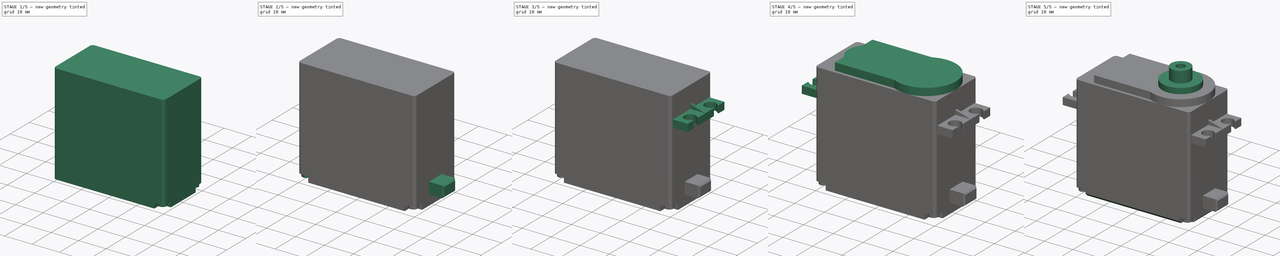
[diagram: build sequence overview — one tinted view per stage of 5, left to right]
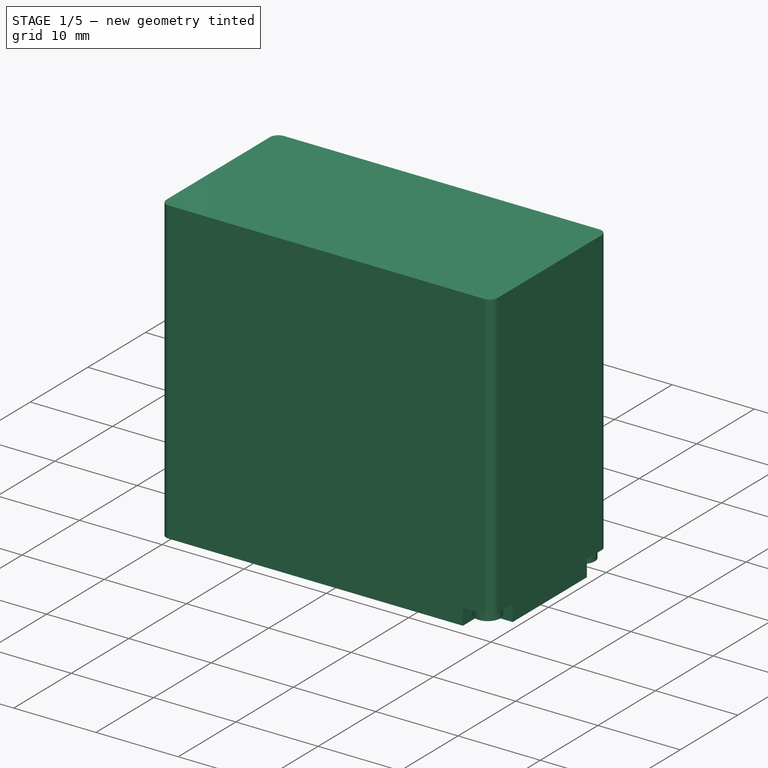
[diagram: stage 1 of 5 — iso view after this stage's code; geometry added in this stage tinted green]
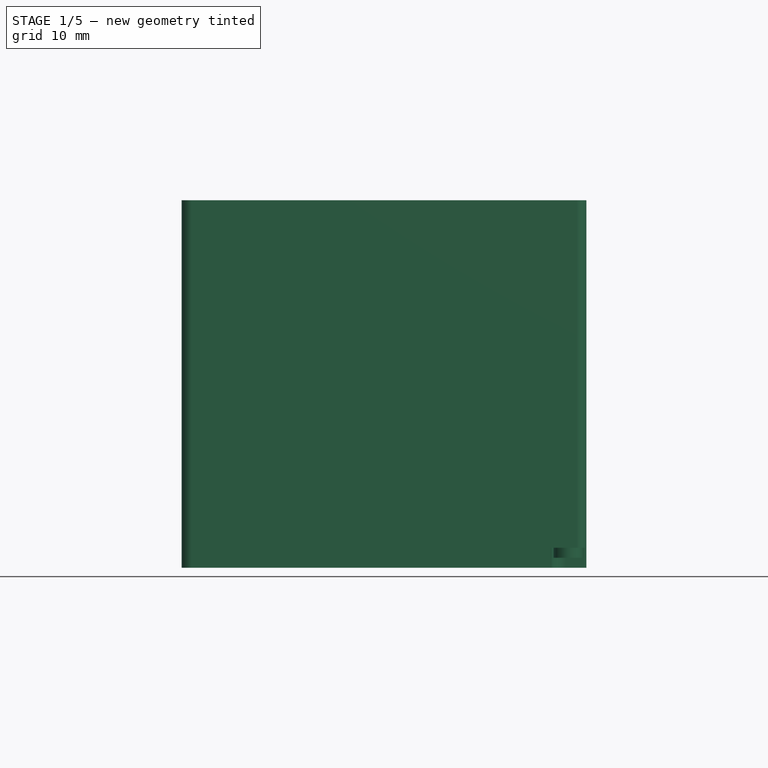
[diagram: stage 1 of 5 — front view after this stage's code; geometry added in this stage tinted green]
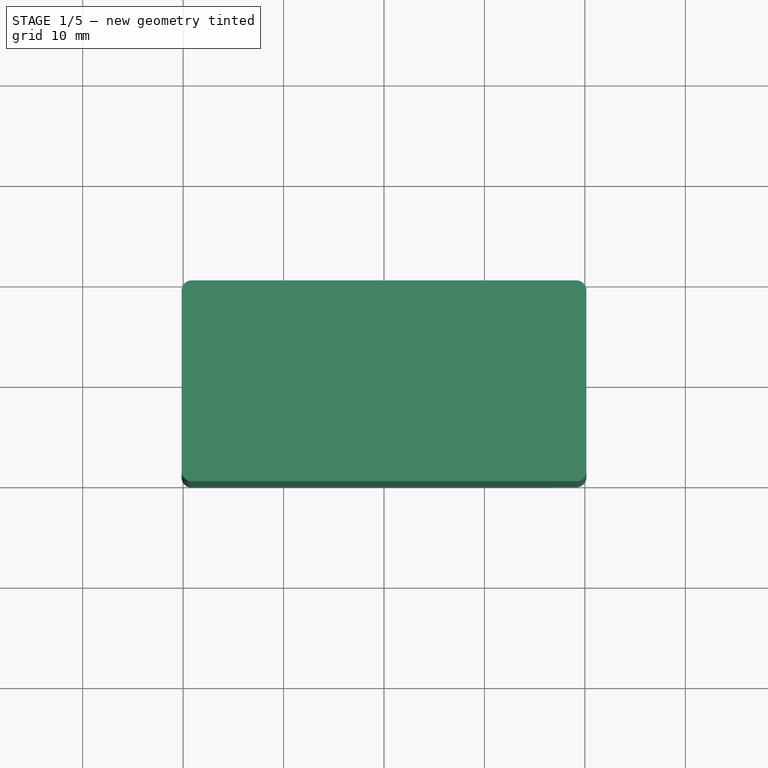
[diagram: stage 1 of 5 — top view after this stage's code; geometry added in this stage tinted green]
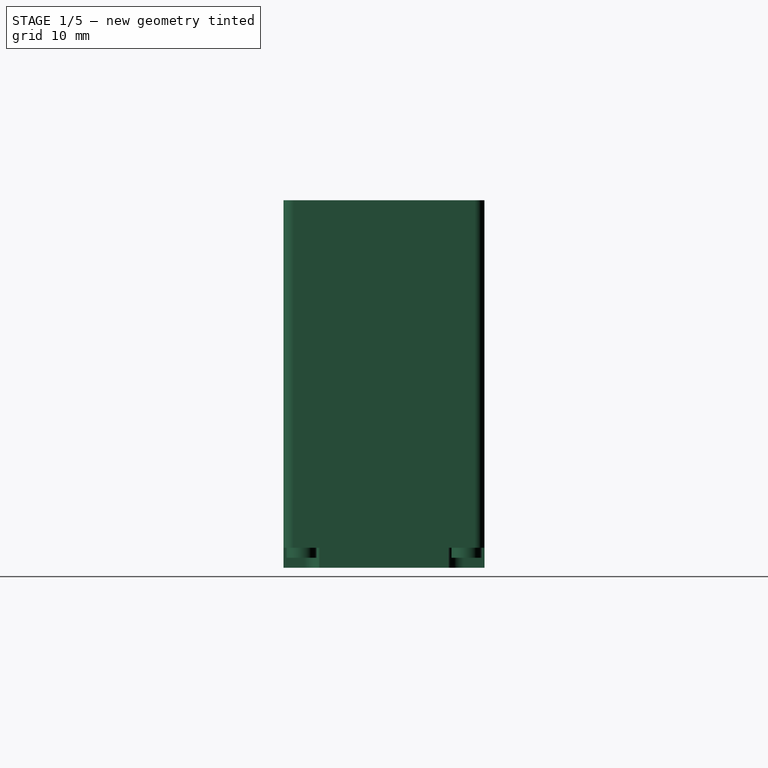
[diagram: stage 1 of 5 — right view after this stage's code; geometry added in this stage tinted green]
FCSTD DOCUMENT  (FreeCAD 1.0R39109 (Git))
Label: servo_mg99
License: All rights reserved
LicenseURL: http://en.wikipedia.org/wiki/All_rights_reserved
objects: Sketcher::SketchObject×11, PartDesign::Pad×7, PartDesign::Mirrored×5, PartDesign::Pocket×3, PartDesign::Fillet×2, PartDesign::Chamfer×2, PartDesign::Body×1
note: 75 computed .brp shape members not serialized (recipe doc carries the construction recipe); baked Part::Feature solids carry a one-line shape summary decoded from their .brp

FEATURE [Sketcher::SketchObject] Sketch
  ArcFitTolerance = 1e-06
  AttachmentSupport = -> [XY_Plane]
  FullyConstrained = true
  MakeInternals = false
  MapMode = 5
  sketch-geometry (5):
    g0: LineSegment StartX=20.15 StartY=10 StartZ=0 EndX=-20.15 EndY=10 EndZ=0
    g1: LineSegment StartX=-20.15 StartY=10 StartZ=0 EndX=-20.15 EndY=-10 EndZ=0
    g2: LineSegment StartX=-20.15 StartY=-10 StartZ=0 EndX=20.15 EndY=-10 EndZ=0
    g3: LineSegment StartX=20.15 StartY=-10 StartZ=0 EndX=20.15 EndY=10 EndZ=0
    g4: GeomPoint [constr] X=0 Y=0 Z=0
  constraints (12):
    c: Coincident(g0,g1)
    c: Coincident(g1,g2)
    c: Coincident(g2,g3)
    c: Coincident(g3,g0)
    c: Horizontal(g0)
    c: Horizontal(g2)
    c: Vertical(g1)
    c: Vertical(g3)
    c: Symmetric(g2,g0,g4)
    c: Coincident(g4,g-1)
    c: DistanceX(g2,g2) = 40.3
    c: DistanceY(g3,g3) = 20
FEATURE [PartDesign::Pad] Pad  label="BasePad"
  Direction = (0,0,1)
  Length = 36.6
  Length2 = 10
  Profile = -> Sketch
  ReferenceAxis = -> Sketch [N_Axis]
  Refine = true
  Suppressed = false
  Type = 0
FEATURE [PartDesign::Fillet] Fillet  label="BAseFillet"
  Base = -> Pad [Edge8,Edge1,Edge5,Edge2]
  BaseFeature = -> Pad
  Radius = 1
  Refine = true
  SupportTransform = false
  Suppressed = false
  UseAllEdges = false
FEATURE [Sketcher::SketchObject] Sketch001
  ArcFitTolerance = 1e-06
  AttachmentSupport = -> [Fillet]
  ExternalGeometry = -> [Fillet]
  FullyConstrained = false
  MakeInternals = false
  MapMode = 5
  Placement = pos=(0,0,0) rot=(1,0,0;3.14159rad)
  sketch-geometry (20):
    g0: Circle [constr] CenterX=19.15 CenterY=9 CenterZ=0 NormalX=0 NormalY=0 NormalZ=1 AngleXU=0 Radius=1.5
    g1: LineSegment [constr] StartX=19.8571 StartY=9.70711 StartZ=0 EndX=18.0893 EndY=7.93934 EndZ=0
    g2: LineSegment [constr] StartX=20.15 StartY=9 StartZ=0 EndX=19.15 EndY=9 EndZ=0
    g3: Circle [constr] CenterX=18.0893 CenterY=7.93934 CenterZ=0 NormalX=0 NormalY=0 NormalZ=1 AngleXU=0 Radius=1.5
    g4: ArcOfCircle CenterX=18.0893 CenterY=7.93934 CenterZ=0 NormalX=0 NormalY=0 NormalZ=1 AngleXU=0 Radius=1.5 StartAngle=3.14159 EndAngle=4.71239
    g5: LineSegment StartX=18.0893 StartY=6.43934 StartZ=0 EndX=20.15 EndY=6.43934 EndZ=0
    g6: LineSegment StartX=16.5893 StartY=7.93934 StartZ=0 EndX=16.5893 EndY=10 EndZ=0
    g7: LineSegment StartX=16.5893 StartY=10 StartZ=0 EndX=19.15 EndY=10 EndZ=0
    g8: LineSegment StartX=20.15 StartY=6.43934 StartZ=0 EndX=20.15 EndY=9 EndZ=0
    g9: ArcOfCircle CenterX=19.15 CenterY=9 CenterZ=0 NormalX=0 NormalY=0 NormalZ=1 AngleXU=0 Radius=1 StartAngle=0 EndAngle=1.5708
    g10: Circle [constr] CenterX=19.15 CenterY=-9 CenterZ=0 NormalX=0 NormalY=0 NormalZ=1 AngleXU=0 Radius=1.5
    g11: LineSegment [constr] StartX=19.8571 StartY=-9.70711 StartZ=0 EndX=18.0893 EndY=-7.93934 EndZ=0
    g12: LineSegment [constr] StartX=20.15 StartY=-9 StartZ=0 EndX=19.15 EndY=-9 EndZ=0
    g13: Circle [constr] CenterX=18.0893 CenterY=-7.93934 CenterZ=0 NormalX=0 NormalY=0 NormalZ=1 AngleXU=0 Radius=1.5
    g14: ArcOfCircle CenterX=18.0893 CenterY=-7.93934 CenterZ=0 NormalX=0 NormalY=0 NormalZ=1 AngleXU=0 Radius=1.5 StartAngle=1.5708 EndAngle=3.14159
    g15: LineSegment StartX=18.0893 StartY=-6.43934 StartZ=0 EndX=20.15 EndY=-6.43934 EndZ=0
    g16: LineSegment StartX=16.5893 StartY=-7.93934 StartZ=0 EndX=16.5893 EndY=-10 EndZ=0
    g17: LineSegment StartX=16.5893 StartY=-10 StartZ=0 EndX=19.15 EndY=-10 EndZ=0
    g18: LineSegment StartX=20.15 StartY=-6.43934 StartZ=0 EndX=20.15 EndY=-9 EndZ=0
    g19: ArcOfCircle CenterX=19.15 CenterY=-9 CenterZ=0 NormalX=0 NormalY=0 NormalZ=1 AngleXU=0 Radius=1 StartAngle=4.71239 EndAngle=6.28319
  constraints (47):
    c: Coincident(g0,g-5)
    c: Radius(g0) = 1.5
    c: PointOnObject(g1,g-5)
    c: PointOnObject(g1,g0)
    c: PointOnObject(g0,g1)
    c: Coincident(g2,g-5)
    c: Coincident(g2,g0)
    c: Angle(g1,g2) = 2.35619
    c: Equal(g3,g0)
    c: Coincident(g3,g1)
    c: Coincident(g4,g1)
    c: PointOnObject(g4,g3)
    c: PointOnObject(g5,g-4)
    c: Horizontal(g5)
    c: Tangent(g5,g4) = -1.5708
    c: Tangent(g6,g3)
    c: Coincident(g4,g6)
    c: Vertical(g6)
    c: PointOnObject(g6,g-3)
    c: Horizontal(g7)
    c: Coincident(g7,g6)
    c: Coincident(g2,g8)
    c: Coincident(g9,g0)
    c: Coincident(g9,g7)
    c: Coincident(g9,g2)
    c: Coincident(g8,g5)
    c: Radius(g10) = 1.5
    c: PointOnObject(g11,g10)
    c: PointOnObject(g10,g11)
    c: Coincident(g12,g10)
    c: Angle(g11,g12) = -2.35619
    c: Equal(g13,g10)
    c: Coincident(g13,g11)
    c: Coincident(g14,g11)
    c: PointOnObject(g14,g13)
    c: Horizontal(g15)
    c: Tangent(g15,g14) = 1.5708
    c: Tangent(g16,g13)
    c: Coincident(g14,g16)
    c: Vertical(g16)
    c: Horizontal(g17)
    c: Coincident(g17,g16)
    c: Coincident(g12,g18)
    c: Coincident(g19,g10)
    c: Coincident(g19,g17)
    c: Coincident(g19,g12)
    c: Coincident(g18,g15)
FEATURE [PartDesign::Pocket] Pocket  label="ScrewBasePocket"
  BaseFeature = -> Fillet
  Direction = (0,0,1)
  Length = 2
  Length2 = 5
  Profile = -> Sketch001
  ReferenceAxis = -> Sketch001 [N_Axis]
  Refine = true
  Suppressed = false
  Type = 0
FEATURE [Sketcher::SketchObject] Sketch002
  ArcFitTolerance = 1e-06
  AttachmentSupport = -> [Pocket]
  ExternalGeometry = -> [Pocket]
  FullyConstrained = false
  MakeInternals = false
  MapMode = 5
  Placement = pos=(0,0,2) rot=(1,0,0;3.14159rad)
  sketch-geometry (34):
    g0: LineSegment [constr] StartX=16.5893 StartY=-10 StartZ=0 EndX=20.15 EndY=-10 EndZ=0
    g1: LineSegment [constr] StartX=20.15 StartY=-10 StartZ=0 EndX=20.15 EndY=-6.43934 EndZ=0
    g2: GeomPoint X=20.15 Y=-8.21967 Z=0
    g3: GeomPoint X=18.3697 Y=-10 Z=0
    g4: Circle CenterX=18.3697 CenterY=-8.21967 CenterZ=0 NormalX=0 NormalY=0 NormalZ=1 AngleXU=0 Radius=1.5
    g5: LineSegment StartX=18.1697 StartY=-8.01967 StartZ=0 EndX=18.1697 EndY=-7.26967 EndZ=0
    g6: LineSegment StartX=18.1697 StartY=-7.26967 StartZ=0 EndX=18.5697 EndY=-7.26967 EndZ=0
    g7: LineSegment StartX=18.5697 StartY=-7.26967 StartZ=0 EndX=18.5697 EndY=-8.01967 EndZ=0
    g8: LineSegment StartX=18.5697 StartY=-8.01967 StartZ=0 EndX=19.3197 EndY=-8.01967 EndZ=0
    g9: LineSegment StartX=19.3197 StartY=-8.01967 StartZ=0 EndX=19.3197 EndY=-8.41967 EndZ=0
    g10: LineSegment StartX=19.3197 StartY=-8.41967 StartZ=0 EndX=18.5697 EndY=-8.41967 EndZ=0
    g11: LineSegment StartX=18.5697 StartY=-8.41967 StartZ=0 EndX=18.5697 EndY=-9.16967 EndZ=0
    g12: LineSegment StartX=18.5697 StartY=-9.16967 StartZ=0 EndX=18.1697 EndY=-9.16967 EndZ=0
    g13: LineSegment StartX=18.1697 StartY=-9.16967 StartZ=0 EndX=18.1697 EndY=-8.41967 EndZ=0
    g14: LineSegment StartX=18.1697 StartY=-8.41967 StartZ=0 EndX=17.4197 EndY=-8.41967 EndZ=0
    g15: LineSegment StartX=17.4197 StartY=-8.41967 StartZ=0 EndX=17.4197 EndY=-8.01967 EndZ=0
    g16: LineSegment StartX=17.4197 StartY=-8.01967 StartZ=0 EndX=18.1697 EndY=-8.01967 EndZ=0
    g17: LineSegment [constr] StartX=16.5893 StartY=10 StartZ=0 EndX=20.15 EndY=10 EndZ=0
    g18: LineSegment [constr] StartX=20.15 StartY=10 StartZ=0 EndX=20.15 EndY=6.43934 EndZ=0
    g19: GeomPoint X=20.15 Y=8.21967 Z=0
    g20: GeomPoint X=18.3697 Y=10 Z=0
    g21: Circle CenterX=18.3697 CenterY=8.21967 CenterZ=0 NormalX=0 NormalY=0 NormalZ=1 AngleXU=0 Radius=1.5
    g22: LineSegment StartX=18.1697 StartY=8.01967 StartZ=0 EndX=18.1697 EndY=7.26967 EndZ=0
    g23: LineSegment StartX=18.1697 StartY=7.26967 StartZ=0 EndX=18.5697 EndY=7.26967 EndZ=0
    g24: LineSegment StartX=18.5697 StartY=7.26967 StartZ=0 EndX=18.5697 EndY=8.01967 EndZ=0
    g25: LineSegment StartX=18.5697 StartY=8.01967 StartZ=0 EndX=19.3197 EndY=8.01967 EndZ=0
    g26: LineSegment StartX=19.3197 StartY=8.01967 StartZ=0 EndX=19.3197 EndY=8.41967 EndZ=0
    g27: LineSegment StartX=19.3197 StartY=8.41967 StartZ=0 EndX=18.5697 EndY=8.41967 EndZ=0
    g28: LineSegment StartX=18.5697 StartY=8.41967 StartZ=0 EndX=18.5697 EndY=9.16967 EndZ=0
    g29: LineSegment StartX=18.5697 StartY=9.16967 StartZ=0 EndX=18.1697 EndY=9.16967 EndZ=0
    g30: LineSegment StartX=18.1697 StartY=9.16967 StartZ=0 EndX=18.1697 EndY=8.41967 EndZ=0
    g31: LineSegment StartX=18.1697 StartY=8.41967 StartZ=0 EndX=17.4197 EndY=8.41967 EndZ=0
    g32: LineSegment StartX=17.4197 StartY=8.41967 StartZ=0 EndX=17.4197 EndY=8.01967 EndZ=0
    g33: LineSegment StartX=17.4197 StartY=8.01967 StartZ=0 EndX=18.1697 EndY=8.01967 EndZ=0
  constraints (80):
    c: Coincident(g0,g-4)
    c: Horizontal(g0)
    c: Coincident(g1,g0)
    c: Coincident(g1,g-3)
    c: Vertical(g1)
    c: Symmetric(g1,g1,g2)
    c: Symmetric(g0,g0,g3)
    c: Radius(g4) = 1.5
    c: Vertical(g3,g4)
    c: Horizontal(g2,g4)
    c: Coincident(g5,g6)
    c: Coincident(g6,g7)
    c: Coincident(g7,g8)
    c: Horizontal(g8)
    c: Coincident(g8,g9)
    c: Coincident(g9,g10)
    c: Coincident(g10,g11)
    c: Coincident(g11,g12)
    c: Coincident(g12,g13)
    c: Coincident(g13,g14)
    c: Coincident(g14,g15)
    c: Vertical(g15)
    c: Coincident(g15,g16)
    c: Coincident(g16,g5)
    c: Horizontal(g16)
    c: Horizontal(g6)
    c: Horizontal(g10)
    c: Horizontal(g12)
    c: Horizontal(g14)
    c: Vertical(g11)
    c: Vertical(g9)
    c: Vertical(g7)
    c: Vertical(g5)
    c: Vertical(g5,g13)
    c: Vertical(g7,g10)
    c: Vertical(g13)
    c: Horizontal(g13,g10)
    c: Horizontal(g7,g5)
    c: Equal(g16,g5)
    c: Equal(g7,g8)
    c: Equal(g10,g11)
    c: DistanceY(g9,g9) = 0.4
    c: DistanceY(g7,g7) = 0.75
    c: Symmetric(g13,g7,g4)
    c: Equal(g6,g9)
    c: Horizontal(g17)
    c: Coincident(g18,g17)
    c: Vertical(g18)
    c: Symmetric(g18,g18,g19)
    c: Symmetric(g17,g17,g20)
    c: Radius(g21) = 1.5
    c: Coincident(g22,g23)
    c: Coincident(g23,g24)
    c: Coincident(g24,g25)
    c: Horizontal(g25)
    c: Coincident(g25,g26)
    c: Coincident(g26,g27)
    c: Coincident(g27,g28)
    c: Coincident(g28,g29)
    c: Coincident(g29,g30)
    c: Coincident(g30,g31)
    c: Coincident(g31,g32)
    c: Vertical(g32)
    c: Coincident(g32,g33)
    c: Coincident(g33,g22)
    c: Horizontal(g33)
    c: Horizontal(g23)
    c: Horizontal(g27)
    c: Horizontal(g29)
    c: Horizontal(g31)
    c: Vertical(g28)
    c: Vertical(g26)
    c: Vertical(g24)
    c: Vertical(g22)
    c: Vertical(g30)
    c: Equal(g33,g22)
    c: Equal(g24,g25)
    c: Equal(g27,g28)
    c: Symmetric(g30,g24,g21)
    c: Equal(g23,g26)
FEATURE [PartDesign::Pad] Pad001  label="ScrewBasePad"
  BaseFeature = -> Pocket
  Direction = (0,0,-1)
  Length = 1
  Length2 = 10
  Profile = -> Sketch002
  ReferenceAxis = -> Sketch002 [N_Axis]
  Refine = true
  Suppressed = false
  Type = 0
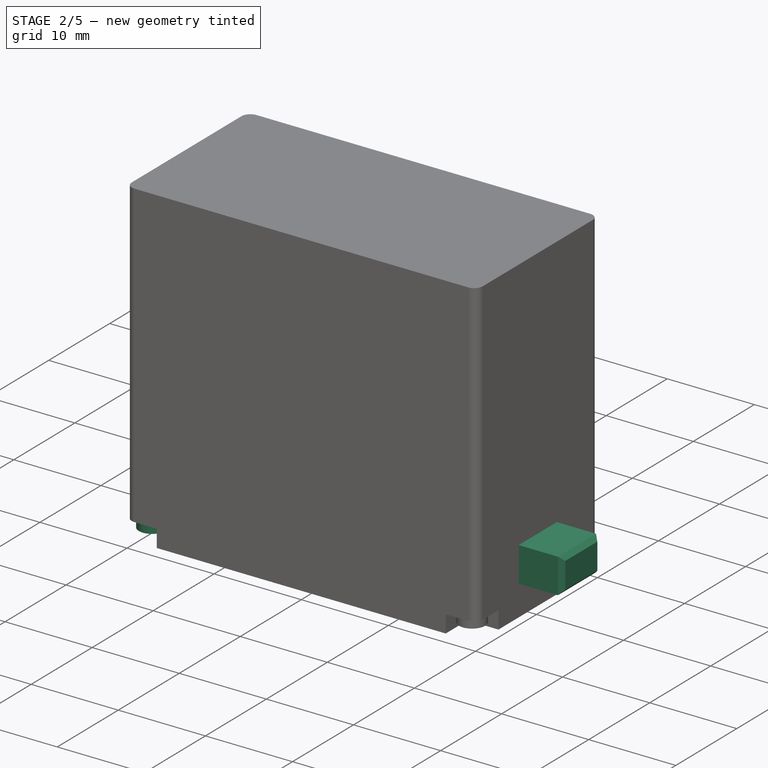
[diagram: stage 2 of 5 — iso view after this stage's code; geometry added in this stage tinted green]
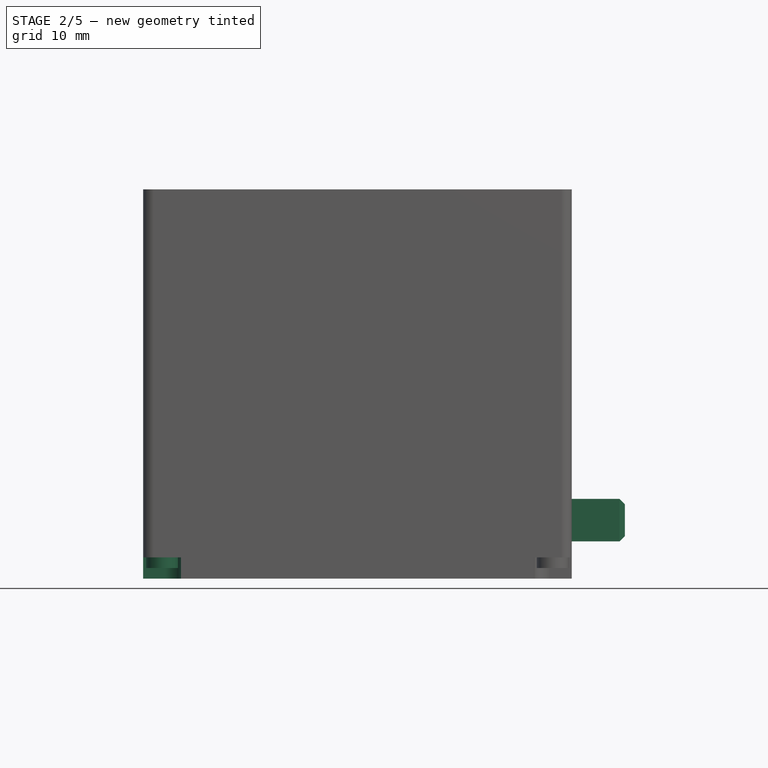
[diagram: stage 2 of 5 — front view after this stage's code; geometry added in this stage tinted green]
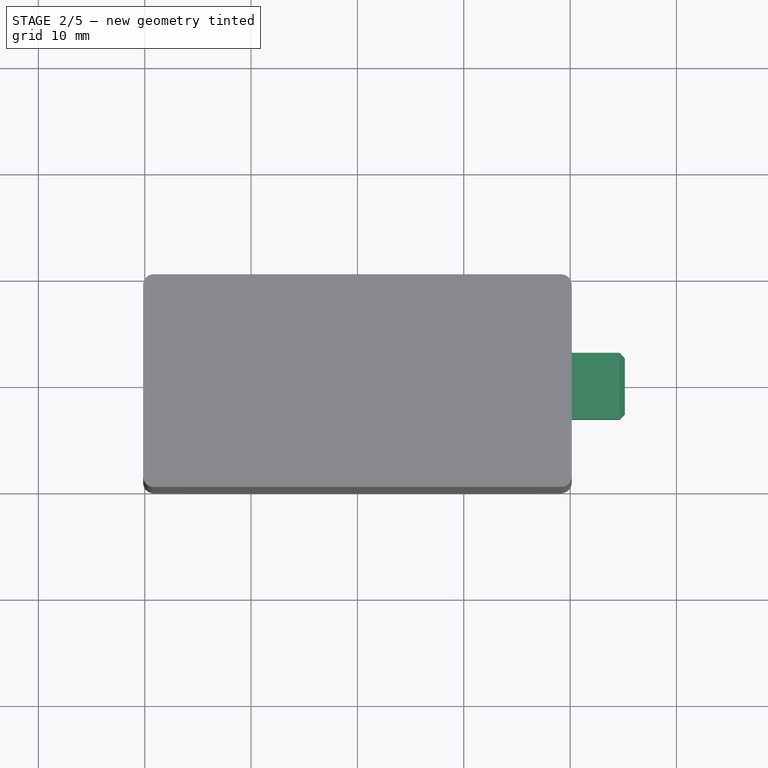
[diagram: stage 2 of 5 — top view after this stage's code; geometry added in this stage tinted green]
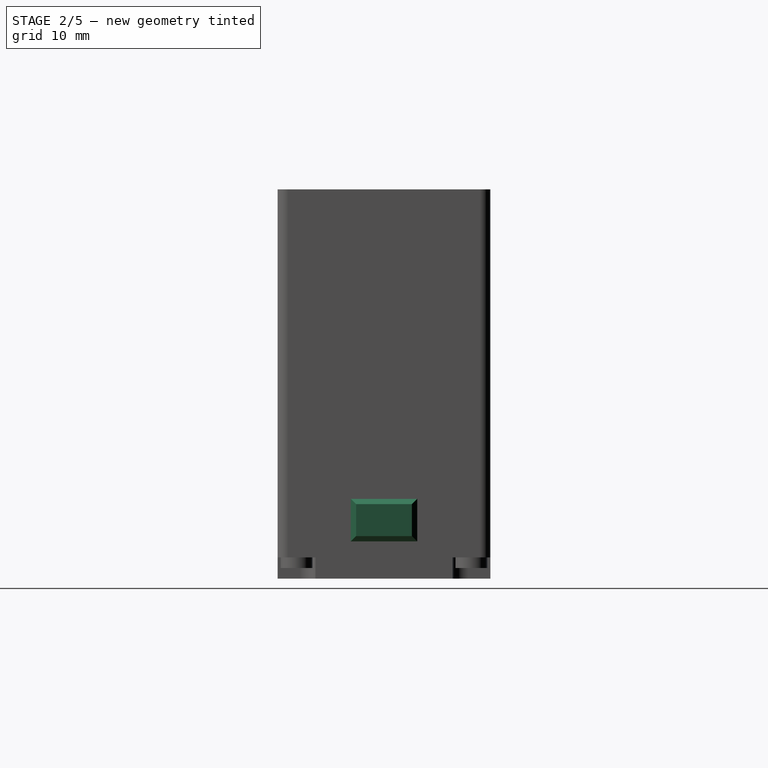
[diagram: stage 2 of 5 — right view after this stage's code; geometry added in this stage tinted green]
FEATURE [PartDesign::Mirrored] Mirrored  label="ScrewBasePocketMirror"
  BaseFeature = -> Pad001
  MirrorPlane = -> YZ_Plane
  Originals = -> [Pocket]
  Refine = true
  Suppressed = false
  TransformMode = 0
FEATURE [PartDesign::Mirrored] Mirrored001  label="ScrewBasePadMirror"
  BaseFeature = -> Mirrored
  MirrorPlane = -> Sketch002 [V_Axis]
  Originals = -> [Pad001]
  Refine = true
  Suppressed = false
  TransformMode = 0
FEATURE [Sketcher::SketchObject] Sketch003
  ArcFitTolerance = 1e-06
  AttachmentSupport = -> [Mirrored001]
  FullyConstrained = true
  MakeInternals = false
  MapMode = 5
  Placement = pos=(20.15,0,0) rot=(0.57735,0.57735,0.57735;2.0944rad)
  sketch-geometry (5):
    g0: LineSegment StartX=-3.125 StartY=7.5 StartZ=0 EndX=-3.125 EndY=3.5 EndZ=0
    g1: LineSegment StartX=-3.125 StartY=3.5 StartZ=0 EndX=3.125 EndY=3.5 EndZ=0
    g2: LineSegment StartX=3.125 StartY=3.5 StartZ=0 EndX=3.125 EndY=7.5 EndZ=0
    g3: LineSegment StartX=3.125 StartY=7.5 StartZ=0 EndX=-3.125 EndY=7.5 EndZ=0
    g4: GeomPoint [constr] X=0 Y=5.5 Z=0
  constraints (13):
    c: Coincident(g0,g1)
    c: Coincident(g1,g2)
    c: Coincident(g2,g3)
    c: Coincident(g3,g0)
    c: Vertical(g0)
    c: Vertical(g2)
    c: Horizontal(g1)
    c: Horizontal(g3)
    c: Symmetric(g2,g0,g4)
    c: PointOnObject(g4,g-2)
    c: DistanceX(g1,g1) = 6.25
    c: DistanceY(g2,g2) = 4
    c: DistanceY(g1) = 3.5
FEATURE [PartDesign::Pad] Pad002  label="ConnectorPad"
  BaseFeature = -> Mirrored001
  Direction = (1,0,0)
  Length = 5
  Length2 = 10
  Profile = -> Sketch003
  ReferenceAxis = -> Sketch003 [N_Axis]
  Refine = true
  Suppressed = false
  Type = 0
FEATURE [PartDesign::Chamfer] Chamfer  label="ConnectorChampfer"
  Angle = 45
  Base = -> Pad002 [Edge86,Edge88,Edge90,Edge91]
  BaseFeature = -> Pad002
  ChamferType = 0
  FlipDirection = false
  Refine = true
  Size = 0.5
  Size2 = 1
  SupportTransform = false
  Suppressed = false
  UseAllEdges = false
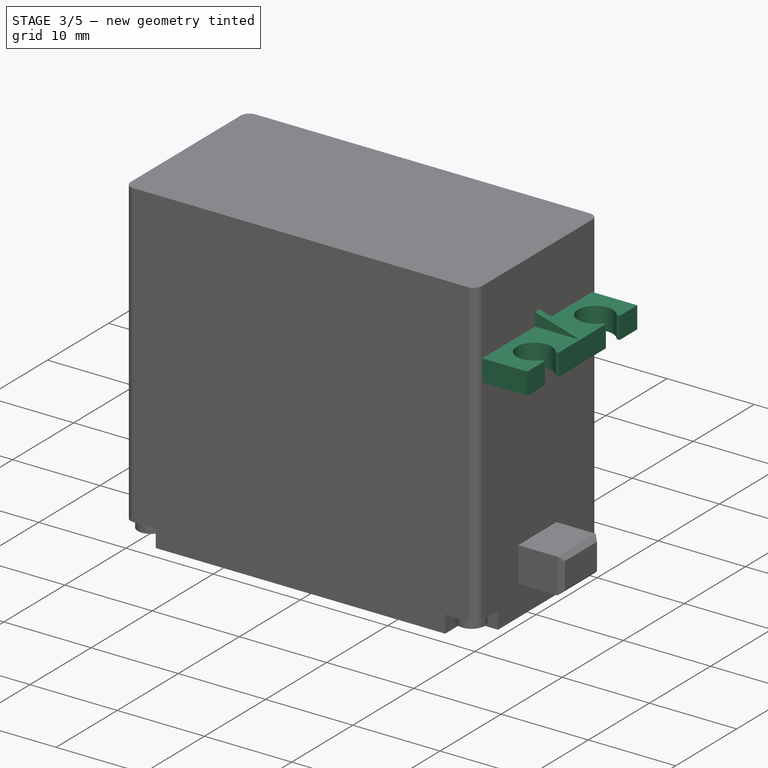
[diagram: stage 3 of 5 — iso view after this stage's code; geometry added in this stage tinted green]
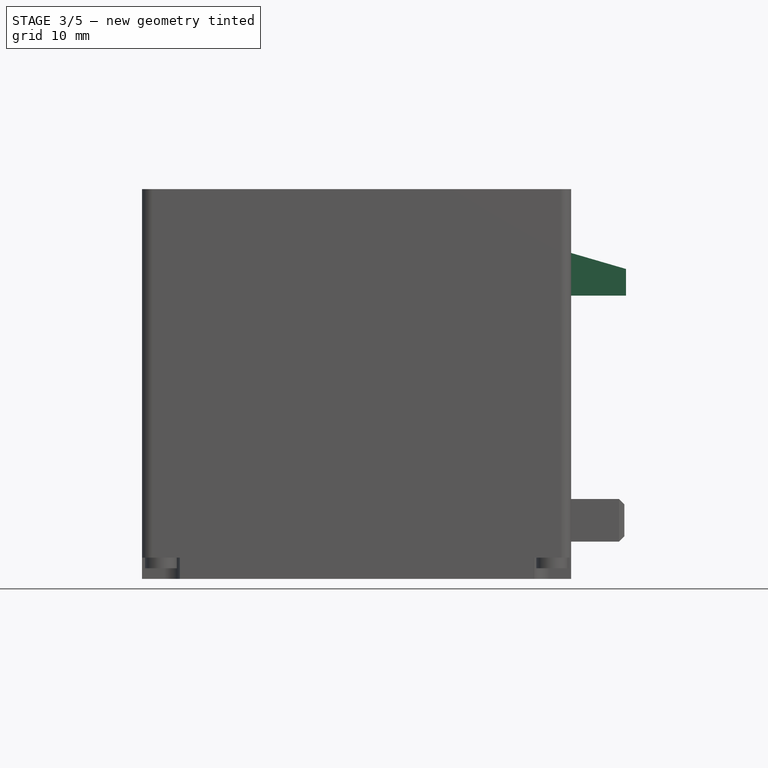
[diagram: stage 3 of 5 — front view after this stage's code; geometry added in this stage tinted green]
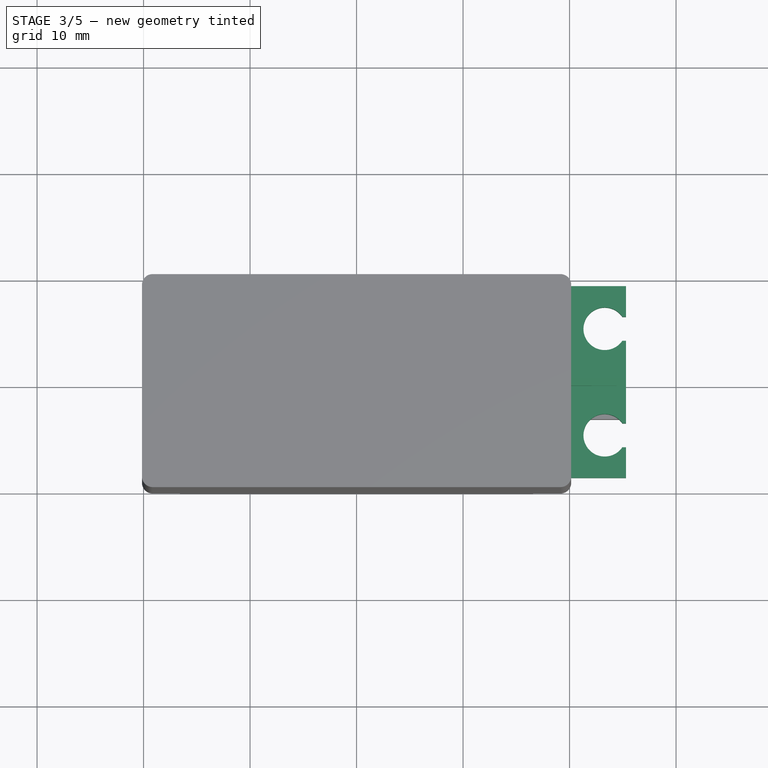
[diagram: stage 3 of 5 — top view after this stage's code; geometry added in this stage tinted green]
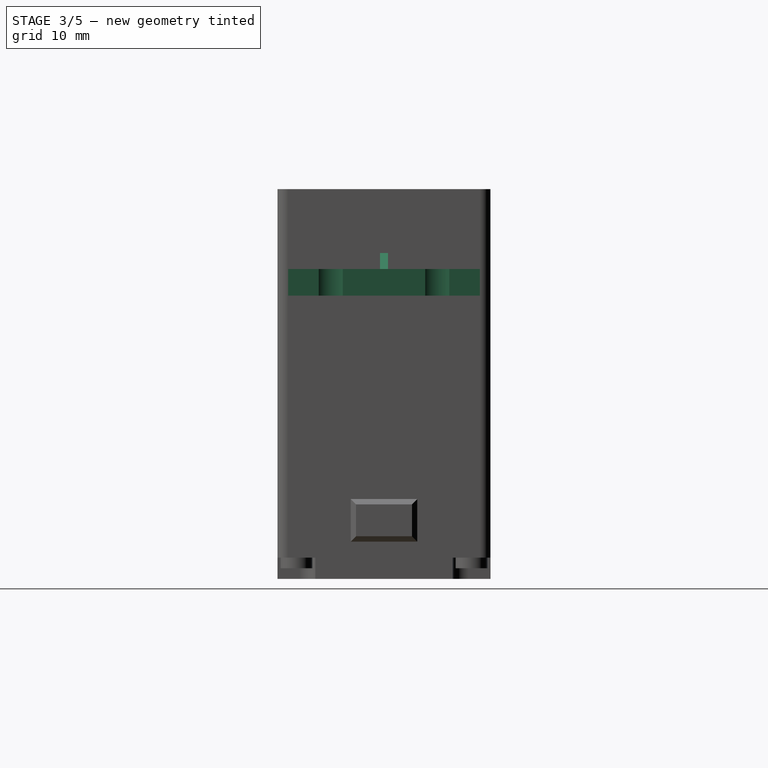
[diagram: stage 3 of 5 — right view after this stage's code; geometry added in this stage tinted green]
FEATURE [Sketcher::SketchObject] Sketch004
  ArcFitTolerance = 1e-06
  AttachmentSupport = -> [Chamfer]
  ExternalGeometry = -> [Chamfer]
  FullyConstrained = true
  MakeInternals = false
  MapMode = 5
  Placement = pos=(20.15,0,0) rot=(0.57735,0.57735,0.57735;2.0944rad)
  sketch-geometry (10):
    g0: LineSegment StartX=-9 StartY=29.1 StartZ=0 EndX=-9 EndY=26.6 EndZ=0
    g1: LineSegment StartX=-9 StartY=26.6 StartZ=0 EndX=9 EndY=26.6 EndZ=0
    g2: LineSegment StartX=9 StartY=26.6 StartZ=0 EndX=9 EndY=29.1 EndZ=0
    g3: LineSegment [constr] StartX=9 StartY=29.1 StartZ=0 EndX=-9 EndY=29.1 EndZ=0
    g4: GeomPoint [constr] X=0 Y=27.85 Z=0
    g5: LineSegment StartX=-9 StartY=29.1 StartZ=0 EndX=-0.375017 EndY=29.1 EndZ=0
    g6: LineSegment StartX=0.375 StartY=29.1 StartZ=0 EndX=9 EndY=29.1 EndZ=0
    g7: LineSegment StartX=-0.375 StartY=30.6 StartZ=0 EndX=0.375 EndY=30.6 EndZ=0
    g8: LineSegment StartX=-0.375017 StartY=29.1 StartZ=0 EndX=-0.375 EndY=30.6 EndZ=0
    g9: LineSegment StartX=0.375 StartY=30.6 StartZ=0 EndX=0.375 EndY=29.1 EndZ=0
  constraints (26):
    c: Coincident(g0,g1)
    c: Coincident(g1,g2)
    c: Coincident(g2,g3)
    c: Coincident(g3,g0)
    c: Vertical(g0)
    c: Vertical(g2)
    c: Horizontal(g1)
    c: Horizontal(g3)
    c: Symmetric(g2,g0,g4)
    c: PointOnObject(g4,g-2)
    c: PointOnObject(g1,g-4)
    c: DistanceY(g1) = 26.6
    c: DistanceY(g2,g2) = 2.5
    c: Coincident(g0,g5)
    c: PointOnObject(g6,g3)
    c: Coincident(g6,g2)
    c: Horizontal(g5,g6)
    c: Symmetric(g7,g7,g-2)
    c: DistanceX(g7,g7) = 0.75
    c: Coincident(g8,g5)
    c: Coincident(g8,g7)
    c: Coincident(g9,g7)
    c: Coincident(g9,g6)
    c: Equal(g9,g8)
    c: Vertical(g9)
    c: DistanceY(g9,g9) = 1.5
FEATURE [PartDesign::Pad] Pad003  label="SupScrewBasePad"
  BaseFeature = -> Chamfer
  Direction = (1,0,0)
  Length = 5.15
  Length2 = 10
  Profile = -> Sketch004
  ReferenceAxis = -> Sketch004 [N_Axis]
  Refine = true
  Suppressed = false
  Type = 0
FEATURE [Sketcher::SketchObject] Sketch005
  ArcFitTolerance = 1e-06
  AttachmentSupport = -> [Pad003]
  ExternalGeometry = -> [Pad003]
  FullyConstrained = true
  MakeInternals = false
  MapMode = 5
  Placement = pos=(0,-0.375352,4.31693e-06) rot=(1,0,0;1.57079rad)
  sketch-geometry (3):
    g0: LineSegment StartX=20.15 StartY=30.6 StartZ=0 EndX=25.3 EndY=29.1 EndZ=0
    g1: LineSegment StartX=25.3 StartY=29.1 StartZ=0 EndX=25.3 EndY=30.6 EndZ=0
    g2: LineSegment StartX=25.3 StartY=30.6 StartZ=0 EndX=20.15 EndY=30.6 EndZ=0
  constraints (6):
    c: Coincident(g-3,g0)
    c: Coincident(g0,g-4)
    c: Coincident(g0,g1)
    c: Coincident(g1,g-4)
    c: Coincident(g1,g2)
    c: Coincident(g2,g0)
FEATURE [PartDesign::Pocket] Pocket001  label="SupScrewBasePocket"
  BaseFeature = -> Pad003
  Direction = (0,1,-1.1501e-05)
  Length = 5
  Length2 = 5
  Profile = -> Sketch005
  ReferenceAxis = -> Sketch005 [N_Axis]
  Refine = true
  Suppressed = false
  Type = 2
FEATURE [Sketcher::SketchObject] Sketch006
  ArcFitTolerance = 1e-06
  AttachmentSupport = -> [Pocket001]
  ExternalGeometry = -> [Pocket001]
  FullyConstrained = false
  MakeInternals = false
  MapMode = 5
  Placement = pos=(0,1.19e-14,29.1) rot=(0,0,1;0rad)
  sketch-geometry (14):
    g0: Circle [constr] CenterX=23.3 CenterY=5 CenterZ=0 NormalX=0 NormalY=0 NormalZ=1 AngleXU=0 Radius=2
    g1: GeomPoint X=23.3 Y=7 Z=0
    g2: GeomPoint X=21.3 Y=5 Z=0
    g3: ArcOfCircle CenterX=23.3 CenterY=5 CenterZ=0 NormalX=0 NormalY=0 NormalZ=1 AngleXU=0 Radius=2 StartAngle=0.597406 EndAngle=5.68578
    g4: LineSegment StartX=24.9536 StartY=6.125 StartZ=0 EndX=25.3 EndY=6.125 EndZ=0
    g5: LineSegment StartX=24.9536 StartY=3.875 StartZ=0 EndX=25.3 EndY=3.875 EndZ=0
    g6: LineSegment StartX=25.3 StartY=6.125 StartZ=0 EndX=25.3 EndY=3.875 EndZ=0
    g7: Circle [constr] CenterX=23.3 CenterY=-5 CenterZ=0 NormalX=0 NormalY=0 NormalZ=1 AngleXU=0 Radius=2
    g8: GeomPoint X=23.3 Y=-7 Z=0
    g9: GeomPoint X=21.3 Y=-5 Z=0
    g10: ArcOfCircle CenterX=23.3 CenterY=-5 CenterZ=0 NormalX=0 NormalY=0 NormalZ=1 AngleXU=0 Radius=2 StartAngle=0.597406 EndAngle=5.68578
    g11: LineSegment StartX=24.9536 StartY=-6.125 StartZ=0 EndX=25.3 EndY=-6.125 EndZ=0
    g12: LineSegment StartX=24.9536 StartY=-3.875 StartZ=0 EndX=25.3 EndY=-3.875 EndZ=0
    g13: LineSegment StartX=25.3 StartY=-6.125 StartZ=0 EndX=25.3 EndY=-3.875 EndZ=0
  constraints (30):
    c: PointOnObject(g1,g0)
    c: Vertical(g0,g1)
    c: DistanceY(g1,g-4) = 2
    c: Radius(g0) = 2
    c: PointOnObject(g2,g0)
    c: Horizontal(g0,g2)
    c: Tangent(g0,g-4)
    c: Coincident(g3,g0)
    c: PointOnObject(g3,g0)
    c: Vertical(g3,g3)
    c: Coincident(g4,g3)
    c: PointOnObject(g4,g-4)
    c: Horizontal(g4)
    c: Coincident(g5,g3)
    c: PointOnObject(g5,g-4)
    c: Horizontal(g5)
    c: Coincident(g6,g4)
    c: Coincident(g6,g5)
    c: DistanceY(g6,g6) = 2.25
    c: PointOnObject(g8,g7)
    c: Radius(g7) = 2
    c: PointOnObject(g9,g7)
    c: Coincident(g10,g7)
    c: PointOnObject(g10,g7)
    c: Coincident(g11,g10)
    c: Horizontal(g11)
    c: Coincident(g12,g10)
    c: Horizontal(g12)
    c: Coincident(g13,g11)
    c: Coincident(g13,g12)
FEATURE [PartDesign::Pocket] Pocket002  label="SupScrewBase2Pocket"
  BaseFeature = -> Pocket001
  Direction = (0,0,-1)
  Length = 5
  Length2 = 5
  Profile = -> Sketch006
  ReferenceAxis = -> Sketch006 [N_Axis]
  Refine = true
  Suppressed = false
  Type = 2
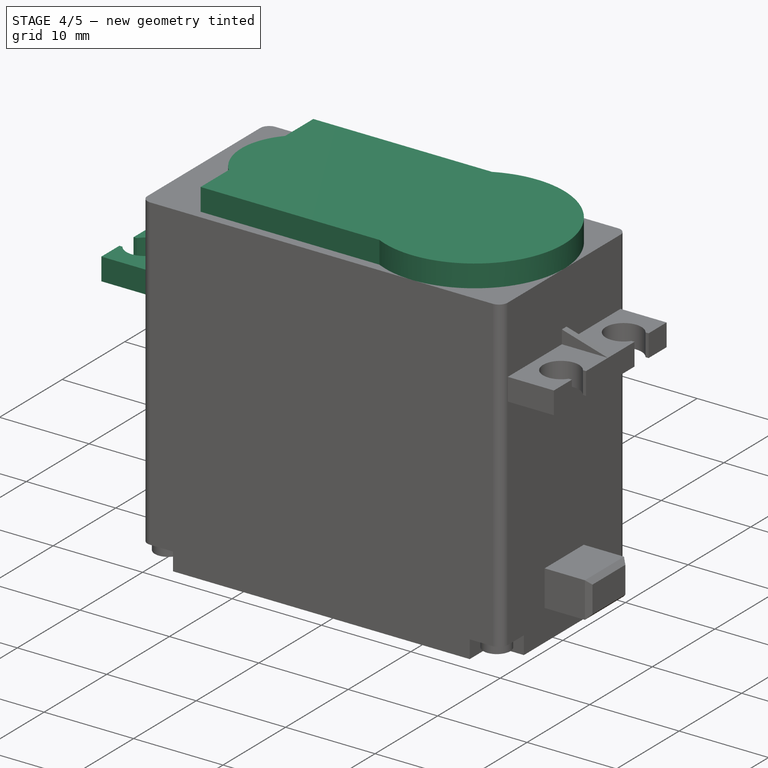
[diagram: stage 4 of 5 — iso view after this stage's code; geometry added in this stage tinted green]
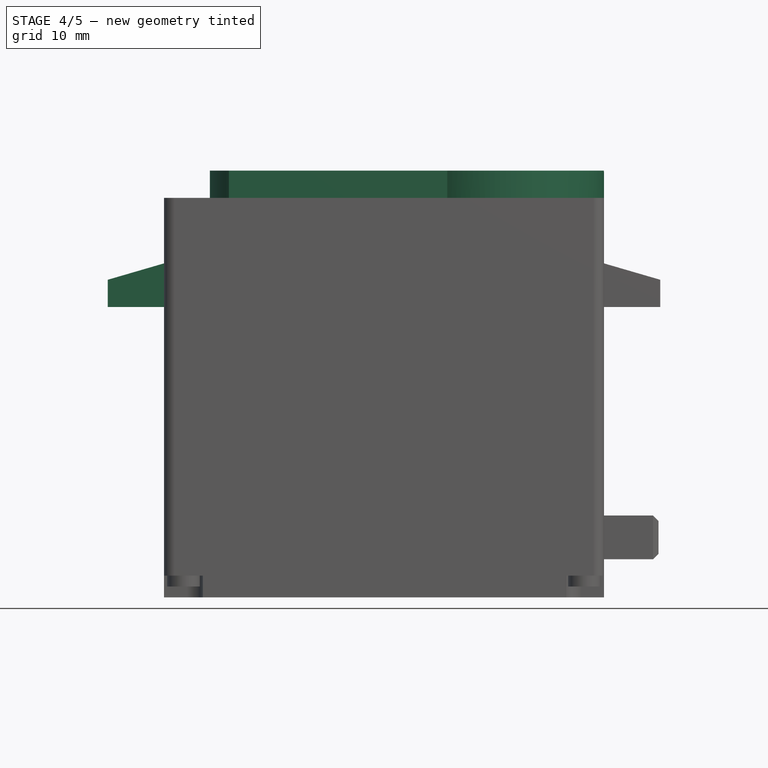
[diagram: stage 4 of 5 — front view after this stage's code; geometry added in this stage tinted green]
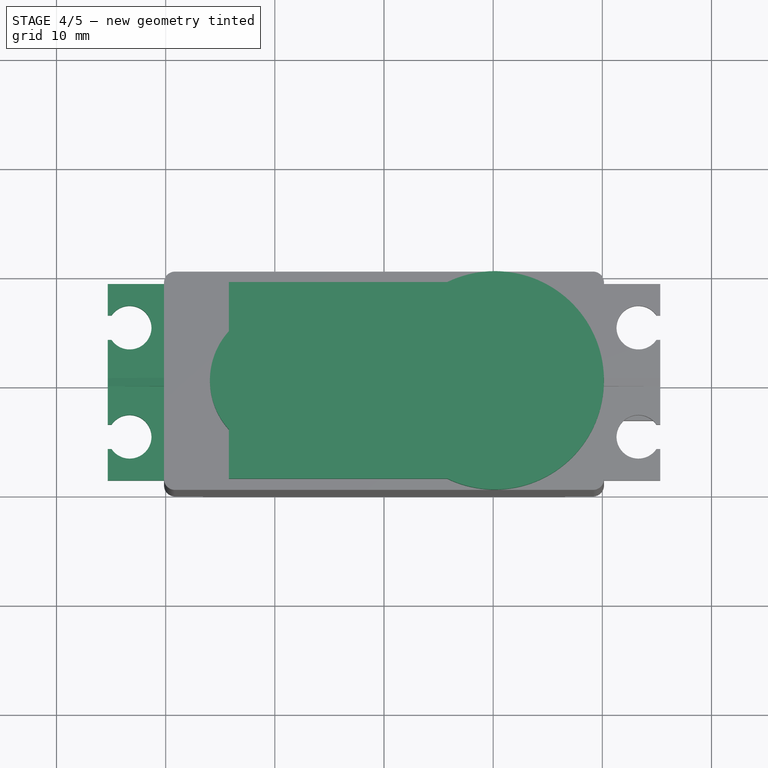
[diagram: stage 4 of 5 — top view after this stage's code; geometry added in this stage tinted green]
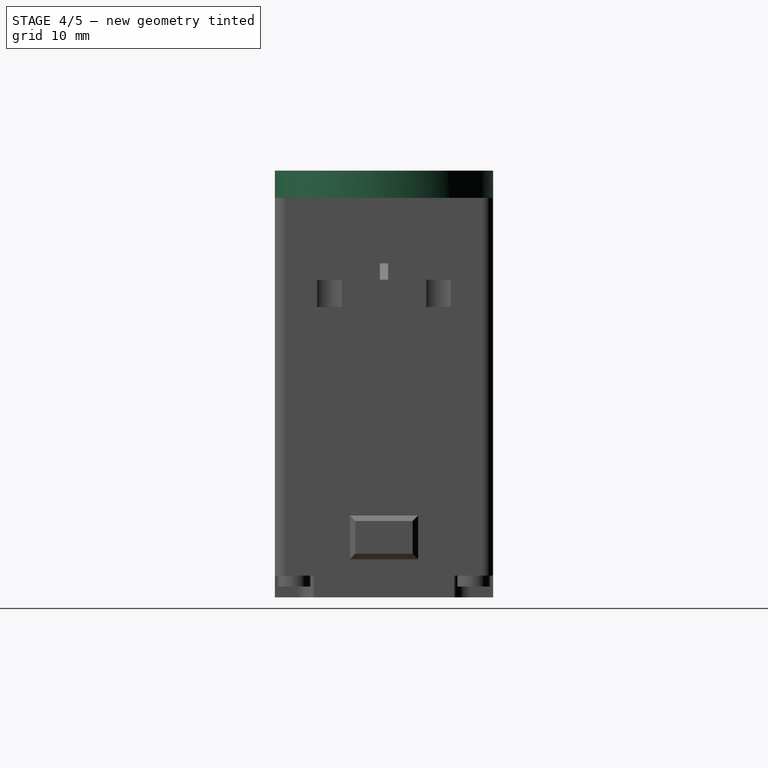
[diagram: stage 4 of 5 — right view after this stage's code; geometry added in this stage tinted green]
FEATURE [PartDesign::Mirrored] Mirrored002  label="SupScrewBasePadMirror"
  BaseFeature = -> Pocket002
  MirrorPlane = -> YZ_Plane
  Originals = -> [Pad003]
  Refine = true
  Suppressed = false
  TransformMode = 0
FEATURE [PartDesign::Mirrored] Mirrored003  label="SupScrewBasePocketMirror"
  BaseFeature = -> Mirrored002
  MirrorPlane = -> Sketch005 [V_Axis]
  Originals = -> [Pocket001]
  Refine = true
  Suppressed = false
  TransformMode = 0
FEATURE [PartDesign::Mirrored] Mirrored004  label="SupScrewBasePocket2Mirror"
  BaseFeature = -> Mirrored003
  MirrorPlane = -> Sketch006 [V_Axis]
  Originals = -> [Pocket002]
  Refine = true
  Suppressed = false
  TransformMode = 0
FEATURE [Sketcher::SketchObject] Sketch007
  ArcFitTolerance = 1e-06
  AttachmentSupport = -> [Mirrored004]
  ExternalGeometry = -> [Mirrored004]
  FullyConstrained = true
  MakeInternals = false
  MapMode = 5
  Placement = pos=(0,0,36.6) rot=(0,0,1;0rad)
  sketch-geometry (7):
    g0: ArcOfCircle CenterX=10.15 CenterY=0 CenterZ=0 NormalX=0 NormalY=0 NormalZ=1 AngleXU=0 Radius=10 StartAngle=4.26136 EndAngle=8.30501
    g1: LineSegment StartX=5.7911 StartY=9 StartZ=0 EndX=-14.2089 EndY=9 EndZ=0
    g2: LineSegment StartX=-14.2089 StartY=9 StartZ=0 EndX=-14.2089 EndY=4.5 EndZ=0
    g3: LineSegment StartX=5.7911 StartY=-9 StartZ=0 EndX=-14.2089 EndY=-9 EndZ=0
    g4: LineSegment StartX=-14.2089 StartY=-9 StartZ=0 EndX=-14.2089 EndY=-4.5 EndZ=0
    g5: ArcOfCircle CenterX=-9.26416 CenterY=0 CenterZ=0 NormalX=0 NormalY=0 NormalZ=1 AngleXU=0 Radius=6.68584 StartAngle=2.40325 EndAngle=3.87994
    g6: GeomPoint X=-15.95 Y=0 Z=0
  constraints (22):
    c: PointOnObject(g0,g-1)
    c: Tangent(g0,g-4)
    c: Vertical(g0,g0)
    c: Tangent(g0,g-3)
    c: Coincident(g1,g0)
    c: Horizontal(g1)
    c: Coincident(g2,g1)
    c: Vertical(g2)
    c: Coincident(g3,g0)
    c: Horizontal(g3)
    c: Coincident(g4,g3)
    c: Vertical(g4)
    c: PointOnObject(g5,g-1)
    c: Coincident(g5,g4)
    c: Coincident(g5,g2)
    c: Vertical(g2,g4)
    c: DistanceY(g0,g-3) = 1
    c: DistanceX(g1,g1) = 20
    c: PointOnObject(g6,g5)
    c: Horizontal(g6,g5)
    c: DistanceX(g6,g-4) = 36.1
    c: DistanceY(g4,g2) = 9
FEATURE [PartDesign::Pad] Pad004  label="SupPlatformPad"
  BaseFeature = -> Mirrored004
  Direction = (0,0,1)
  Length = 2.5
  Length2 = 10
  Profile = -> Sketch007
  ReferenceAxis = -> Sketch007 [N_Axis]
  Refine = true
  Suppressed = false
  Type = 0
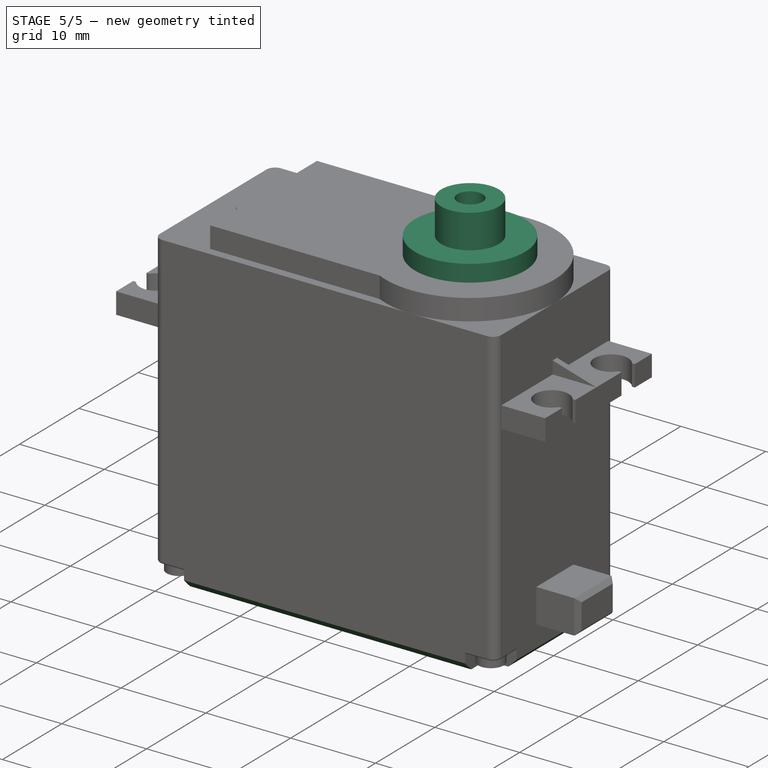
[diagram: stage 5 of 5 — iso view after this stage's code; geometry added in this stage tinted green]
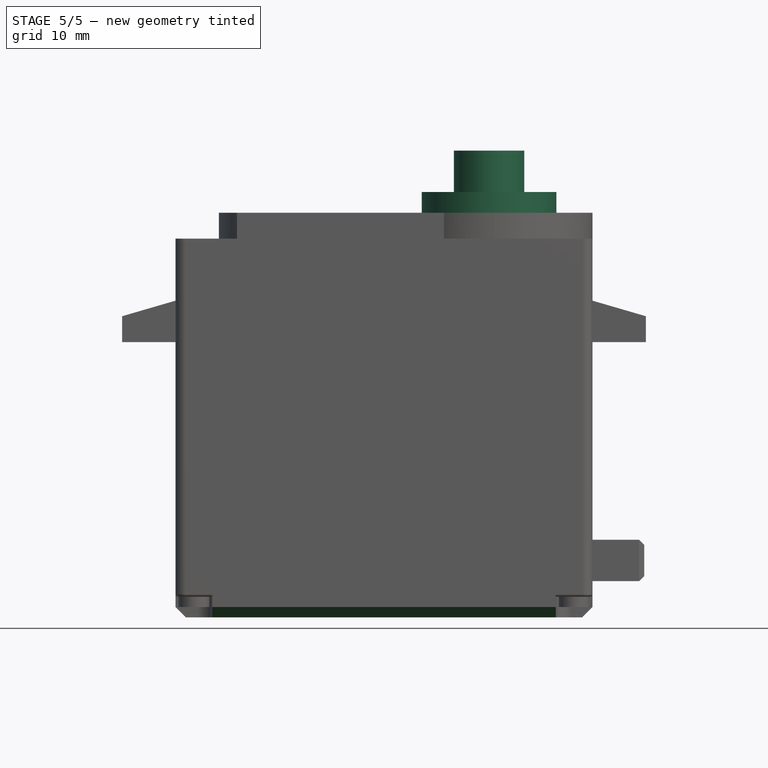
[diagram: stage 5 of 5 — front view after this stage's code; geometry added in this stage tinted green]
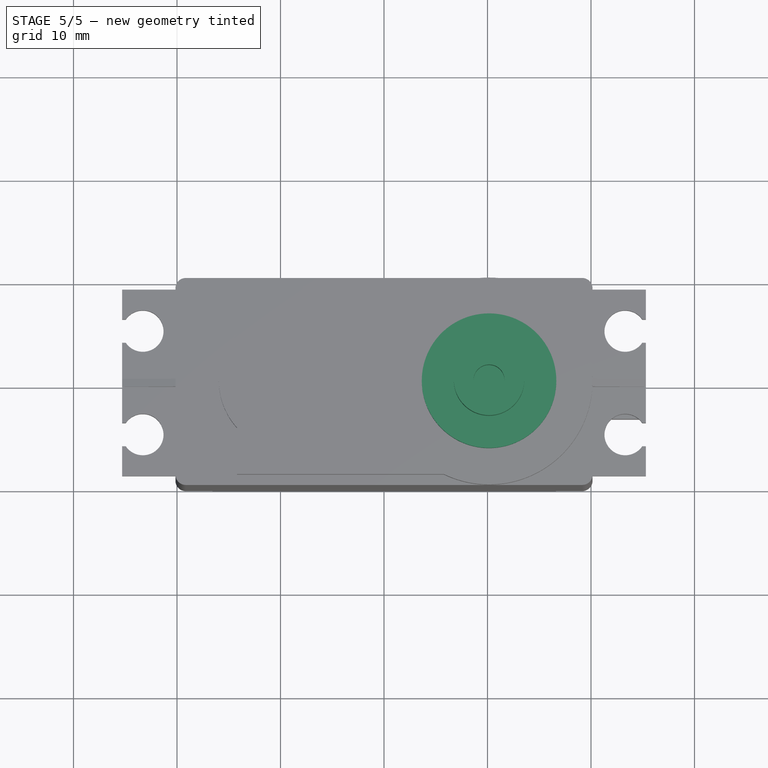
[diagram: stage 5 of 5 — top view after this stage's code; geometry added in this stage tinted green]
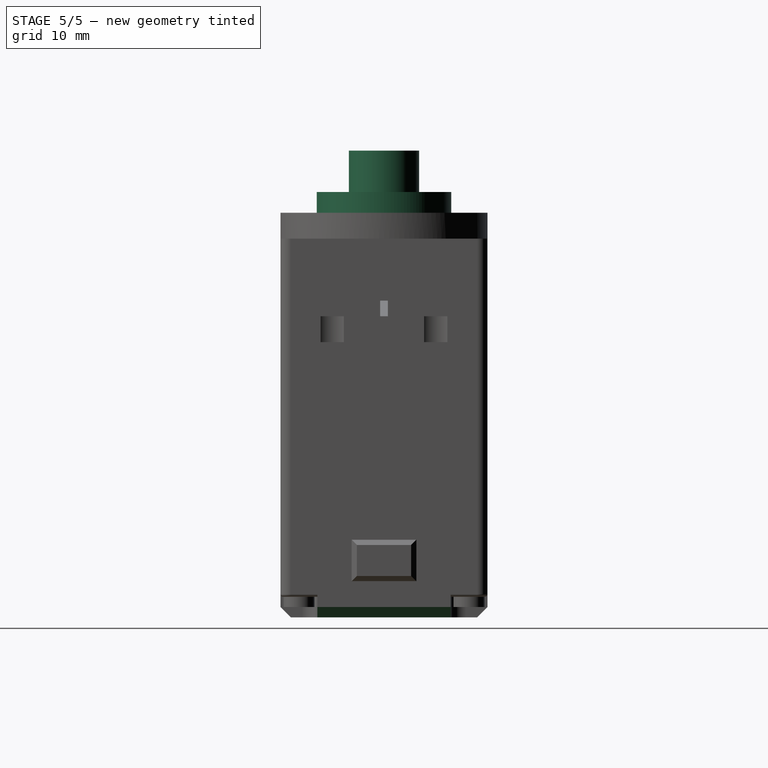
[diagram: stage 5 of 5 — right view after this stage's code; geometry added in this stage tinted green]
FEATURE [Sketcher::SketchObject] Sketch008
  ArcFitTolerance = 1e-06
  AttachmentSupport = -> [Pad004]
  ExternalGeometry = -> [Pad004]
  FullyConstrained = true
  MakeInternals = false
  MapMode = 5
  Placement = pos=(0,0,39.1) rot=(0,0,1;0rad)
  sketch-geometry (1):
    g0: Circle CenterX=10.15 CenterY=0 CenterZ=0 NormalX=0 NormalY=0 NormalZ=1 AngleXU=0 Radius=6.5
  constraints (2):
    c: Coincident(g0,g-3)
    c: Radius(g0) = 6.5
FEATURE [PartDesign::Pad] Pad005  label="ShaftConnectionPad"
  BaseFeature = -> Pad004
  Direction = (0,0,1)
  Length = 2
  Length2 = 10
  Profile = -> Sketch008
  ReferenceAxis = -> Sketch008 [N_Axis]
  Refine = true
  Suppressed = false
  Type = 0
FEATURE [Sketcher::SketchObject] Sketch009
  ArcFitTolerance = 1e-06
  AttachmentSupport = -> [Pad005]
  ExternalGeometry = -> [Pad005]
  FullyConstrained = true
  MakeInternals = false
  MapMode = 5
  Placement = pos=(0,0,41.1) rot=(0,0,1;0rad)
  sketch-geometry (2):
    g0: Circle CenterX=10.15 CenterY=0 CenterZ=0 NormalX=0 NormalY=0 NormalZ=1 AngleXU=0 Radius=3.4
    g1: Circle CenterX=10.15 CenterY=0 CenterZ=0 NormalX=0 NormalY=0 NormalZ=1 AngleXU=0 Radius=1.5
  constraints (4):
    c: Coincident(g0,g-3)
    c: Radius(g0) = 3.4
    c: Coincident(g1,g0)
    c: Radius(g1) = 1.5
FEATURE [PartDesign::Pad] Pad006  label="ShaftPad"
  BaseFeature = -> Pad005
  Direction = (0,0,1)
  Length = 4
  Length2 = 10
  Profile = -> Sketch009
  ReferenceAxis = -> Sketch009 [N_Axis]
  Refine = true
  Suppressed = false
  Type = 0
FEATURE [PartDesign::Fillet] Fillet001  label="FinalFillets"
  Base = -> Pad006 [Edge74,Edge70,Edge17,Edge13,Edge49,Edge48,Edge103,Edge171,Edge95,Edge91,Edge156,Edge83]
  BaseFeature = -> Pad006
  Radius = 0.25
  Refine = true
  SupportTransform = false
  Suppressed = false
  UseAllEdges = false
FEATURE [PartDesign::Chamfer] Chamfer001  label="FInalChamfers"
  Angle = 45
  Base = -> Fillet001 [Edge49,Edge53,Edge57,Edge8]
  BaseFeature = -> Fillet001
  ChamferType = 0
  FlipDirection = false
  Refine = true
  Size = 1
  Size2 = 1
  SupportTransform = false
  Suppressed = false
  UseAllEdges = false
FEATURE [Sketcher::SketchObject] Sketch010
  ArcFitTolerance = 1e-06
  AttachmentSupport = -> [Chamfer001]
  ExternalGeometry = -> [Chamfer001]
  FullyConstrained = true
  MakeInternals = false
  MapMode = 5
  Placement = pos=(0,0,36.6) rot=(0,0,1;0rad)
  sketch-geometry (9):
    g0: LineSegment [constr] StartX=-25.3 StartY=9 StartZ=0 EndX=-25.3 EndY=-9 EndZ=0
    g1: LineSegment [constr] StartX=-25.3 StartY=-9 StartZ=0 EndX=25.3 EndY=-9 EndZ=0
    g2: LineSegment [constr] StartX=25.3 StartY=-9 StartZ=0 EndX=25.3 EndY=9 EndZ=0
    g3: LineSegment [constr] StartX=25.3 StartY=9 StartZ=0 EndX=-25.3 EndY=9 EndZ=0
    g4: LineSegment StartX=-33.3 StartY=9 StartZ=0 EndX=-33.3 EndY=-9 EndZ=0
    g5: LineSegment StartX=-33.3 StartY=-9 StartZ=0 EndX=33.3 EndY=-9 EndZ=0
    g6: LineSegment StartX=33.3 StartY=-9 StartZ=0 EndX=33.3 EndY=9 EndZ=0
    g7: LineSegment StartX=33.3 StartY=9 StartZ=0 EndX=-33.3 EndY=9 EndZ=0
    g8: GeomPoint [constr] X=0 Y=0 Z=0
  constraints (29):
    c: Coincident(g0,g1)
    c: Coincident(g1,g2)
    c: Coincident(g2,g3)
    c: Coincident(g3,g0)
    c: Vertical(g0)
    c: Vertical(g2)
    c: Horizontal(g1)
    c: Horizontal(g3)
    c: Tangent(g-6,g2)
    c: Tangent(g0,g-4)
    c: PointOnObject(g-7,g1)
    c: PointOnObject(g-8,g3)
    c: Coincident(g4,g5)
    c: Coincident(g5,g6)
    c: Coincident(g6,g7)
    c: Coincident(g7,g4)
    c: Vertical(g4)
    c: Vertical(g6)
    c: Horizontal(g5)
    c: Horizontal(g7)
    c: Symmetric(g6,g4,g8)
    c: Coincident(g8,g-1)
    c: DistanceX(g1,g5) = 8
    c: Horizontal(g2,g6)
    c: DistanceX(g7,g7) = 66.6
    c: DistanceX(g-3,g-5) = 46.6
    c: DistanceY(g-6,g-5) = 10
    c: DistanceX(g-9,g-5) = 3.15
    c: DistanceY(g1,g-6) = 4
FEATURE [PartDesign::Body] Body  label="servo_mg996r"
  AllowCompound = false
  Group = -> [Sketch,Pad,Fillet,Sketch001,Pocket,Sketch002,Pad001,Mirrored,Mirrored001,Sketch003,Pad002,Chamfer,Sketch004,Pad003,Sketch005,Pocket001,Sketch006,Pocket002,Mirrored002,Mirrored003,Mirrored004,Sketch007,Pad004,Sketch008,Pad005,Sketch009,Pad006,Fillet001,Chamfer001,Sketch010]
  Origin = -> Origin
  Tip = -> Chamfer001
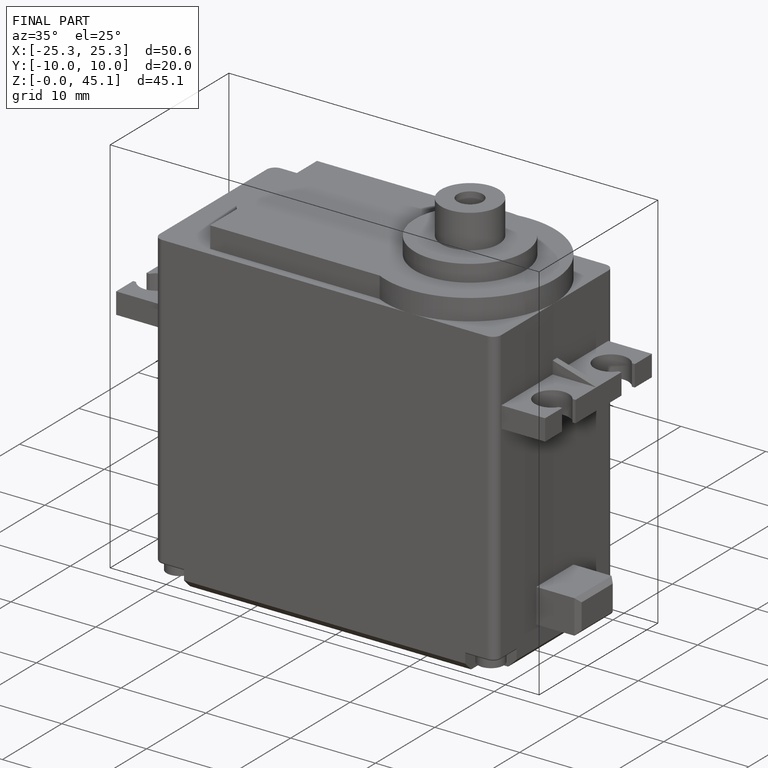
[diagram: finished part — iso view with bounding-box wireframe]
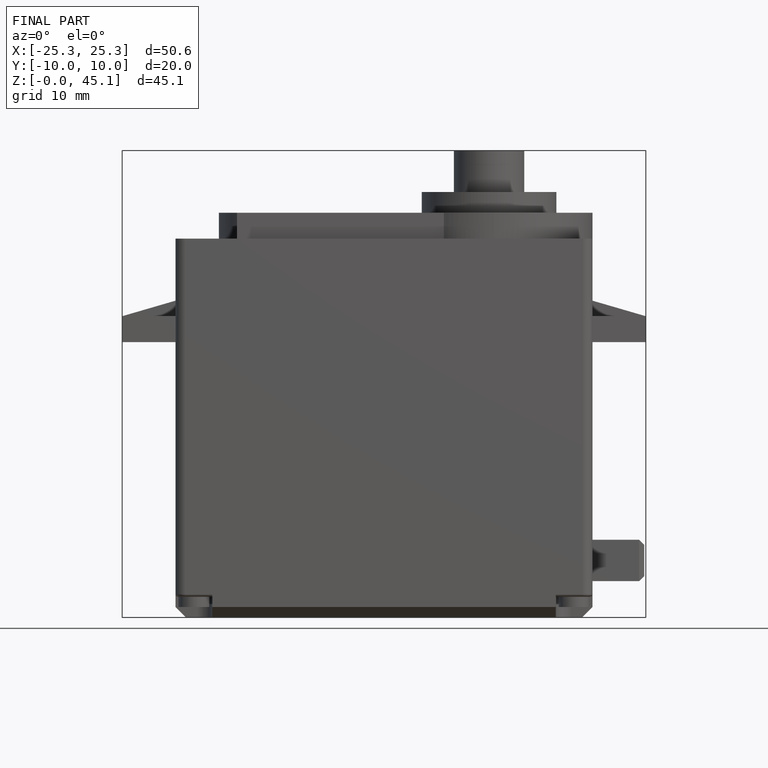
[diagram: finished part — front view with bounding-box wireframe]
